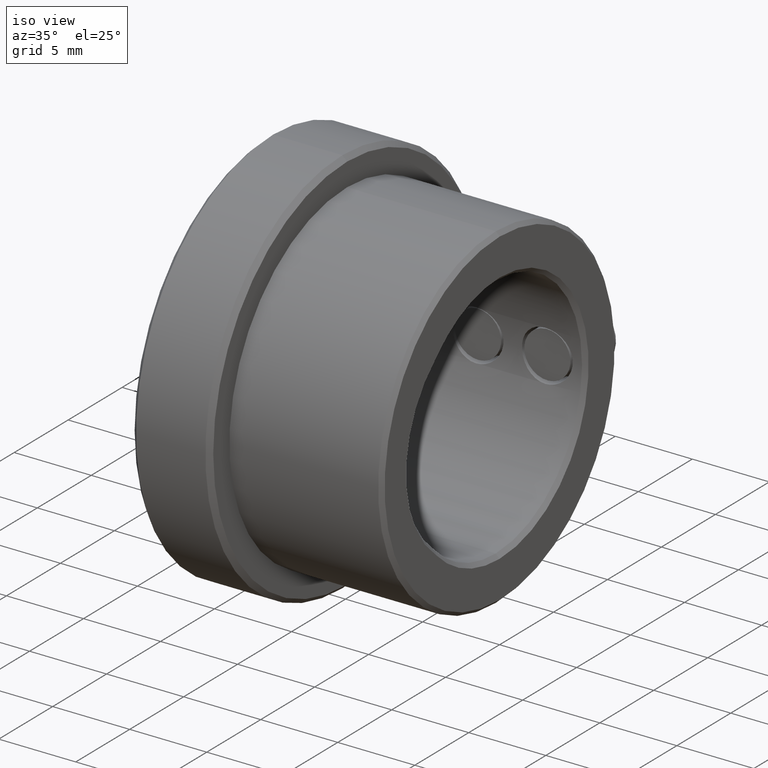
[diagram: clean part render]
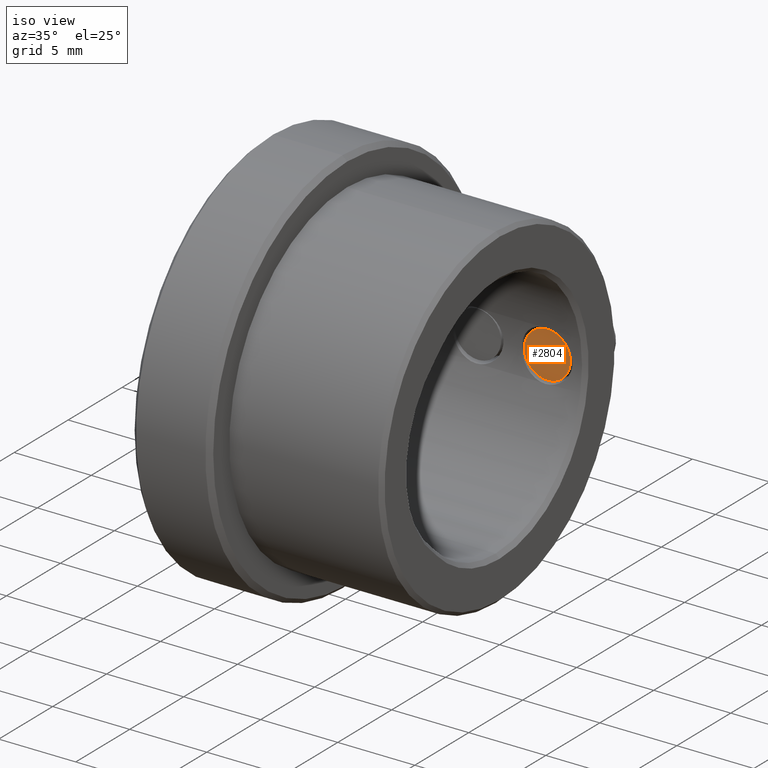
[diagram: same view with one face highlighted and labeled with its STEP entity id]
A machine part, iso view. The second image highlights one B-rep face of the part: STEP entity #2804.
In plain terms, the highlighted planar face has unit normal (0, -1, -0).
Its self-contained STEP definition (entity closure, byte-faithful):
#272 = PLANE ( 'NONE',  #1068 ) ;
#579 = VERTEX_POINT ( 'NONE', #4488 ) ;
#673 = CIRCLE ( 'NONE', #1218, 1.500000000000000222 ) ;
#813 = ORIENTED_EDGE ( 'NONE', *, *, #4725, .T. ) ;
#972 = DIRECTION ( 'NONE',  ( 0.000000000000000000, -1.000000000000000000, 0.000000000000000000 ) ) ;
#981 = FACE_OUTER_BOUND ( 'NONE', #1050, .T. ) ;
#1050 = EDGE_LOOP ( 'NONE', ( #1262, #813 ) ) ;
#1068 = AXIS2_PLACEMENT_3D ( 'NONE', #1288, #2098, #3603 ) ;
#1218 = AXIS2_PLACEMENT_3D ( 'NONE', #3798, #4547, #1926 ) ;
#1262 = ORIENTED_EDGE ( 'NONE', *, *, #2681, .T. ) ;
#1288 = CARTESIAN_POINT ( 'NONE',  ( 0.000000000000000000, -1.000000000000000000, 0.000000000000000000 ) ) ;
#1325 = CARTESIAN_POINT ( 'NONE',  ( 0.000000000000000000, -1.000000000000000000, 0.000000000000000000 ) ) ;
#1926 = DIRECTION ( 'NONE',  ( 0.000000000000000000, 0.000000000000000000, -1.000000000000000000 ) ) ;
#2098 = DIRECTION ( 'NONE',  ( 0.000000000000000000, -1.000000000000000000, 0.000000000000000000 ) ) ;
#2148 = AXIS2_PLACEMENT_3D ( 'NONE', #1325, #972, #2462 ) ;
#2462 = DIRECTION ( 'NONE',  ( 0.000000000000000000, 0.000000000000000000, -1.000000000000000000 ) ) ;
#2681 = EDGE_CURVE ( 'NONE', #579, #3533, #673, .T. ) ;
#2804 = ADVANCED_FACE ( 'NONE', ( #981 ), #272, .T. ) ;
#2939 = CIRCLE ( 'NONE', #2148, 1.500000000000000222 ) ;
#2977 = CARTESIAN_POINT ( 'NONE',  ( 1.836970198721030181E-16, -1.000000000000000000, -1.500000000000000222 ) ) ;
#3533 = VERTEX_POINT ( 'NONE', #2977 ) ;
#3603 = DIRECTION ( 'NONE',  ( 0.000000000000000000, -0.000000000000000000, -1.000000000000000000 ) ) ;
#3798 = CARTESIAN_POINT ( 'NONE',  ( 0.000000000000000000, -1.000000000000000000, 0.000000000000000000 ) ) ;
#4488 = CARTESIAN_POINT ( 'NONE',  ( 0.000000000000000000, -1.000000000000000000, 1.500000000000000222 ) ) ;
#4547 = DIRECTION ( 'NONE',  ( 0.000000000000000000, -1.000000000000000000, 0.000000000000000000 ) ) ;
#4725 = EDGE_CURVE ( 'NONE', #3533, #579, #2939, .T. ) ;